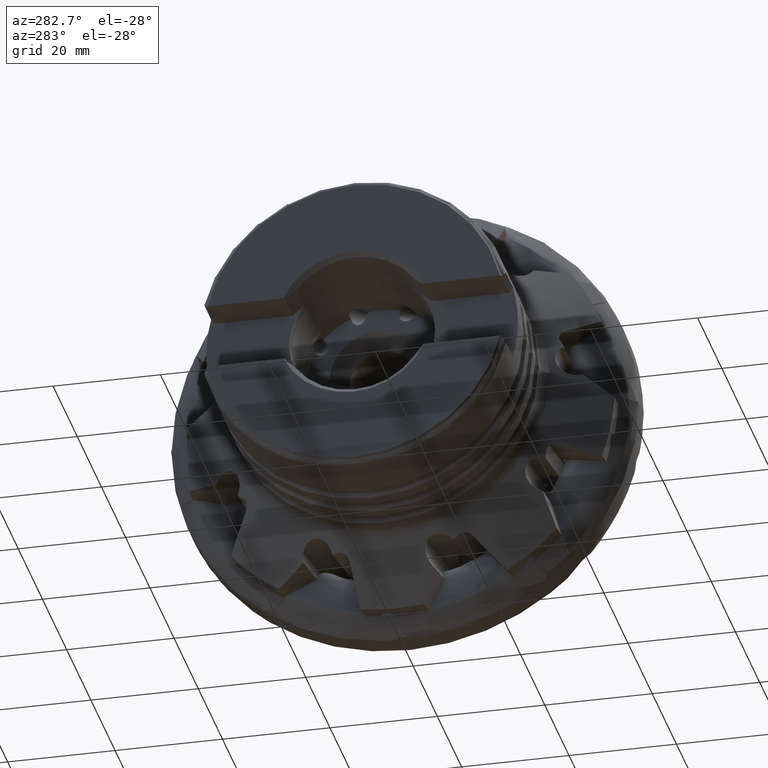
[diagram: clean part render]
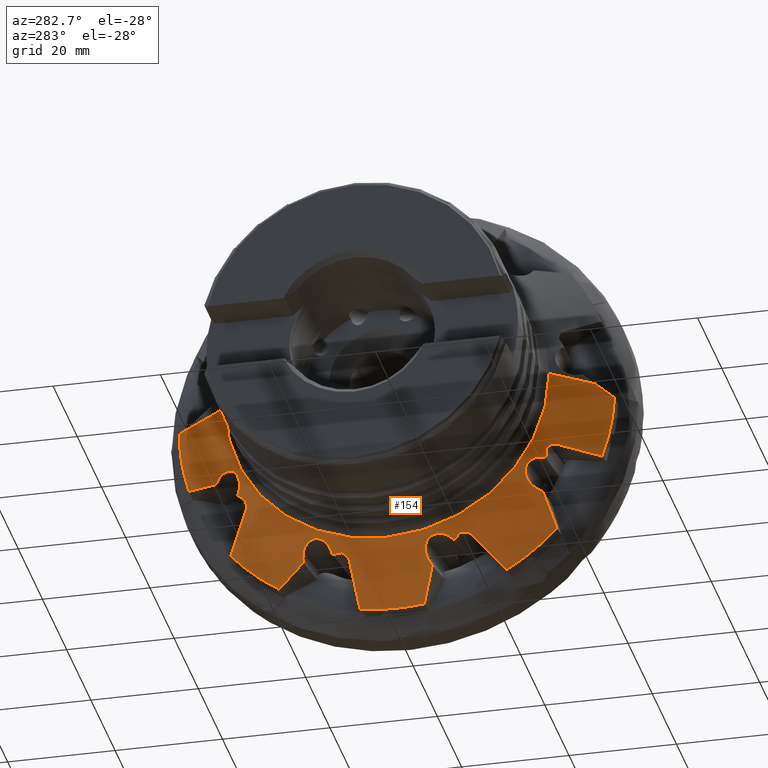
[diagram: same view with one face highlighted and labeled with its STEP entity id]
A machine part, auxiliary view. The second image highlights one B-rep face of the part: STEP entity #154.
In plain terms, the highlighted conical surface has half-angle 51.956 deg.
Its self-contained STEP definition (entity closure, byte-faithful):
#8 = DIRECTION ( 'NONE',  ( 1.000000000000000000, 1.224646799147353700E-016, -0.0000000000000000000 ) ) ;
#31 = ORIENTED_EDGE ( 'NONE', *, *, #8888, .F. ) ;
#79 = CARTESIAN_POINT ( 'NONE',  ( -18.69021929738616100, -31.02789995755659900, -13.21715150206612900 ) ) ;
#154 = ADVANCED_FACE ( 'NONE', ( #5780 ), #1470, .T. ) ;
#164 = CARTESIAN_POINT ( 'NONE',  ( -18.69021929738618200, 7.628414987509808400, -32.85165071017050300 ) ) ;
#197 = CARTESIAN_POINT ( 'NONE',  ( -13.35000000000000000, -29.75684249906444400, -27.54692041745994400 ) ) ;
#256 = CARTESIAN_POINT ( 'NONE',  ( -17.48333123287310500, -7.343886018885501500, -34.49504754871970400 ) ) ;
#305 = B_SPLINE_CURVE_WITH_KNOTS ( 'NONE', 3,
 ( #2437, #12588, #3895, #14036 ),
 .UNSPECIFIED., .F., .F.,
 ( 4, 4 ),
 ( 0.0001314531480404987700, 0.007431885192477834100 ),
 .UNSPECIFIED. ) ;
#369 = EDGE_CURVE ( 'NONE', #5730, #1523, #11348, .T. ) ;
#410 = CARTESIAN_POINT ( 'NONE',  ( -19.66920217236100000, 10.85832108273683300, -30.60678451065379200 ) ) ;
#461 = CARTESIAN_POINT ( 'NONE',  ( -20.05628040764100800, -10.71916145709184300, -30.13114893054616800 ) ) ;
#527 = CARTESIAN_POINT ( 'NONE',  ( -20.17603357581927500, -7.171777549566678900, -31.00868679443856700 ) ) ;
#530 = CARTESIAN_POINT ( 'NONE',  ( -20.52399002435707600, 12.02998316859838300, -28.98578551683642600 ) ) ;
#586 = CARTESIAN_POINT ( 'NONE',  ( -19.60636128569370100, 15.33537032473015100, -28.71694734350034000 ) ) ;
#646 = CARTESIAN_POINT ( 'NONE',  ( -18.69021929738616100, -31.02789995755659900, -13.21715150206612900 ) ) ;
#688 = EDGE_CURVE ( 'NONE', #6395, #10643, #15365, .T. ) ;
#702 = CARTESIAN_POINT ( 'NONE',  ( -19.52697270070735800, -29.53517726739957500, -13.93357428617625400 ) ) ;
#739 = EDGE_CURVE ( 'NONE', #7302, #5730, #3713, .T. ) ;
#759 = CARTESIAN_POINT ( 'NONE',  ( -20.56951584025491200, 28.37741607824020200, -13.26531334090468700 ) ) ;
#813 = CARTESIAN_POINT ( 'NONE',  ( -17.36833271861303300, 32.79565304663298500, -13.36653592623916100 ) ) ;
#832 = AXIS2_PLACEMENT_3D ( 'NONE', #5865, #16025, #7342 ) ;
#871 = CARTESIAN_POINT ( 'NONE',  ( -19.52697270070734300, -13.66892951242429400, -29.65858315209082700 ) ) ;
#877 = CARTESIAN_POINT ( 'NONE',  ( -18.81502452121225500, 16.08866946287674800, -29.45923926435359500 ) ) ;
#924 = ORIENTED_EDGE ( 'NONE', *, *, #13828, .F. ) ;
#946 = CARTESIAN_POINT ( 'NONE',  ( -19.11123593451899400, 7.833602415292612700, -32.25009117772649600 ) ) ;
#966 = VERTEX_POINT ( 'NONE', #8762 ) ;
#972 = VERTEX_POINT ( 'NONE', #2862 ) ;
#1039 = CIRCLE ( 'NONE', #7793, 40.54999999999999700 ) ;
#1141 = DIRECTION ( 'NONE',  ( -1.283395913176429500E-016, 1.000000000000000000, 0.0000000000000000000 ) ) ;
#1179 = ORIENTED_EDGE ( 'NONE', *, *, #18270, .F. ) ;
#1208 = CARTESIAN_POINT ( 'NONE',  ( -19.30207685235750500, -28.80394249904111000, -15.98854269067364900 ) ) ;
#1242 = CARTESIAN_POINT ( 'NONE',  ( -19.46830311970100200, -29.19004041238537500, -14.81974602739063100 ) ) ;
#1259 = CARTESIAN_POINT ( 'NONE',  ( -18.69021929738617500, 26.96033894523504400, -20.26237383829329600 ) ) ;
#1268 = CARTESIAN_POINT ( 'NONE',  ( -20.59025953215084900, -26.15113400049477100, -17.19611646626937300 ) ) ;
#1277 = CARTESIAN_POINT ( 'NONE',  ( -14.97286565305243600, -38.47613345799581500, -0.6621226943618682100 ) ) ;
#1312 = DIRECTION ( 'NONE',  ( -1.283395913176429500E-016, 1.000000000000000000, 0.0000000000000000000 ) ) ;
#1317 = CARTESIAN_POINT ( 'NONE',  ( -19.11123593451899800, 26.73084662014210600, -19.66966056501708900 ) ) ;
#1326 = CARTESIAN_POINT ( 'NONE',  ( -19.47803254729735300, -25.69478138477562400, -20.25617812329671400 ) ) ;
#1470 = CONICAL_SURFACE ( 'NONE', #4968, 40.54999999999999700, 0.9067981123664179400 ) ;
#1523 = VERTEX_POINT ( 'NONE', #9070 ) ;
#1548 = CARTESIAN_POINT ( 'NONE',  ( -19.17535351589828000, 28.34876105255968800, -17.09792135835128200 ) ) ;
#1627 = ORIENTED_EDGE ( 'NONE', *, *, #7557, .F. ) ;
#1867 = VERTEX_POINT ( 'NONE', #8499 ) ;
#1920 = CARTESIAN_POINT ( 'NONE',  ( -20.31673876396597900, -10.12070874881616300, -29.98559661540161200 ) ) ;
#1969 = CARTESIAN_POINT ( 'NONE',  ( -19.85532128889016700, -6.840698967890754800, -31.50336496422517700 ) ) ;
#1970 = CARTESIAN_POINT ( 'NONE',  ( -20.60510810308362700, 12.58802825201619800, -28.63467356797339700 ) ) ;
#2026 = CARTESIAN_POINT ( 'NONE',  ( -19.21807215297796400, 15.75613539305480900, -29.05387900384099400 ) ) ;
#2142 = CARTESIAN_POINT ( 'NONE',  ( -19.17535351589828000, 28.34876105255968800, -17.09792135835128200 ) ) ;
#2164 = CARTESIAN_POINT ( 'NONE',  ( -19.59808051752240800, -29.29517450843486500, -14.22350093984326400 ) ) ;
#2198 = CARTESIAN_POINT ( 'NONE',  ( -20.41661134708939000, 28.81049808836913000, -12.78552126644300000 ) ) ;
#2211 = CARTESIAN_POINT ( 'NONE',  ( -19.32712676111311000, -12.37402938476044100, -30.50231280895750500 ) ) ;
#2232 = ORIENTED_EDGE ( 'NONE', *, *, #9650, .F. ) ;
#2335 = CARTESIAN_POINT ( 'NONE',  ( -19.59808051752240500, -13.29871547189112300, -29.72640905429140500 ) ) ;
#2341 = CARTESIAN_POINT ( 'NONE',  ( -18.40711158138275000, 16.33308596537981900, -29.91968913791260200 ) ) ;
#2401 = CARTESIAN_POINT ( 'NONE',  ( -19.35499015185929400, 8.163198879024882600, -31.84693859409965100 ) ) ;
#2437 = CARTESIAN_POINT ( 'NONE',  ( -17.36833271861302900, 16.53108409701460600, -31.31999999999999300 ) ) ;
#2465 = EDGE_CURVE ( 'NONE', #18517, #8930, #4009, .T. ) ;
#2508 = DIRECTION ( 'NONE',  ( 0.6162705013462863600, -0.7875345510962658000, 9.644516672179897400E-017 ) ) ;
#2625 = EDGE_CURVE ( 'NONE', #17328, #10535, #13104, .T. ) ;
#2710 = CARTESIAN_POINT ( 'NONE',  ( -20.59783053431433000, -25.83761940121321400, -17.64558070560842800 ) ) ;
#2719 = CARTESIAN_POINT ( 'NONE',  ( -13.34999999999999300, -40.50188297053937700, -1.974835649043407800 ) ) ;
#2723 = ORIENTED_EDGE ( 'NONE', *, *, #5164, .F. ) ;
#2773 = CARTESIAN_POINT ( 'NONE',  ( -19.35499015185929400, 26.72419067408742100, -19.14896724551707400 ) ) ;
#2785 = CARTESIAN_POINT ( 'NONE',  ( -19.08318460382904300, -25.98327862998711200, -20.70443377778829900 ) ) ;
#2862 = CARTESIAN_POINT ( 'NONE',  ( -13.35000000000000700, 38.73475412708065600, -11.99672133187260500 ) ) ;
#2866 = EDGE_CURVE ( 'NONE', #9783, #17328, #7429, .T. ) ;
#2962 = ORIENTED_EDGE ( 'NONE', *, *, #15771, .F. ) ;
#2979 = VERTEX_POINT ( 'NONE', #18418 ) ;
#3144 = ORIENTED_EDGE ( 'NONE', *, *, #9438, .F. ) ;
#3150 = DIRECTION ( 'NONE',  ( 1.000000000000000000, 1.224646799147353700E-016, -0.0000000000000000000 ) ) ;
#3362 = CARTESIAN_POINT ( 'NONE',  ( -20.46938650801272500, -9.639691402361320300, -29.93887152391284800 ) ) ;
#3423 = CARTESIAN_POINT ( 'NONE',  ( -19.28072456588562400, -6.605561313303501200, -32.30284645957756600 ) ) ;
#3424 = CARTESIAN_POINT ( 'NONE',  ( -20.59046142462018700, 12.99456439438414400, -28.47243203382426200 ) ) ;
#3480 = B_SPLINE_CURVE_WITH_KNOTS ( 'NONE', 3,
 ( #15704, #7009, #12856, #4160 ),
 .UNSPECIFIED., .F., .F.,
 ( 4, 4 ),
 ( 0.002523415085199293600, 0.009823748894369249000 ),
 .UNSPECIFIED. ) ;
#3662 = CARTESIAN_POINT ( 'NONE',  ( -20.16526306676830400, 29.31360085586136300, -12.43246755634560200 ) ) ;
#3713 = B_SPLINE_CURVE_WITH_KNOTS ( 'NONE', 3,
 ( #5864, #14564, #17469, #8800 ),
 .UNSPECIFIED., .F., .F.,
 ( 4, 4 ),
 ( 0.01610332926583343100, 0.01794551413778120900 ),
 .UNSPECIFIED. ) ;
#3788 = CARTESIAN_POINT ( 'NONE',  ( -18.00502161635284200, 16.48709061923346700, -30.42087164980084100 ) ) ;
#3833 = VERTEX_POINT ( 'NONE', #6373 ) ;
#3844 = CARTESIAN_POINT ( 'NONE',  ( -19.52697270070734700, 8.593162274643914200, -31.50601134270641200 ) ) ;
#3895 = CARTESIAN_POINT ( 'NONE',  ( -14.71399454524613200, 20.16651581961092900, -33.17099166041313700 ) ) ;
#3914 = CARTESIAN_POINT ( 'NONE',  ( -13.35000000000000500, 40.54966021884087700, -0.1660004113019694100 ) ) ;
#4009 = B_SPLINE_CURVE_WITH_KNOTS ( 'NONE', 3,
 ( #16182, #6025, #14715, #7483, #17631, #8963, #256, #10428 ),
 .UNSPECIFIED., .F., .F.,
 ( 4, 2, 2, 4 ),
 ( 0.01274623700687061700, 0.01399861403436286600, 0.01462480254810899100, 0.01525099106185511500 ),
 .UNSPECIFIED. ) ;
#4061 = CARTESIAN_POINT ( 'NONE',  ( -13.80120445866984000, 39.97340400841039100, 4.309282533594475900E-017 ) ) ;
#4105 = B_SPLINE_CURVE_WITH_KNOTS ( 'NONE', 3,
 ( #6710, #15410, #9639, #946, #11122, #2401, #12551, #3844, #13999, #5327 ),
 .UNSPECIFIED., .F., .F.,
 ( 4, 2, 2, 2, 4 ),
 ( 0.0000000000000000000, 0.0005765854406293929000, 0.001153170881258786900, 0.001729756321888180700, 0.002306341762517574600 ),
 .UNSPECIFIED. ) ;
#4110 = CARTESIAN_POINT ( 'NONE',  ( -19.42511457449093400, -28.62315943246166600, -15.99018985809106600 ) ) ;
#4154 = CARTESIAN_POINT ( 'NONE',  ( -19.59808051752240800, -29.29517450843486500, -14.22350093984326400 ) ) ;
#4160 = CARTESIAN_POINT ( 'NONE',  ( -13.35000000000000700, 38.73475412708065600, -11.99672133187260500 ) ) ;
#4181 = CARTESIAN_POINT ( 'NONE',  ( -20.56545044273781300, -25.68476923661929200, -17.93968782906801700 ) ) ;
#4210 = AXIS2_PLACEMENT_3D ( 'NONE', #11858, #3150, #13302 ) ;
#4231 = DIRECTION ( 'NONE',  ( 1.000000000000000000, 1.224646799147353700E-016, -0.0000000000000000000 ) ) ;
#4235 = CARTESIAN_POINT ( 'NONE',  ( -19.52697270070735800, 26.83441793104588800, -18.61142667575679600 ) ) ;
#4245 = CARTESIAN_POINT ( 'NONE',  ( -18.67772688941574800, -26.34925614920003800, -21.07646757195263400 ) ) ;
#4318 = ORIENTED_EDGE ( 'NONE', *, *, #2866, .T. ) ;
#4323 = CIRCLE ( 'NONE', #9902, 40.54999999999999700 ) ;
#4519 = EDGE_CURVE ( 'NONE', #12507, #966, #1039, .T. ) ;
#4536 = ORIENTED_EDGE ( 'NONE', *, *, #12036, .F. ) ;
#4590 = ORIENTED_EDGE ( 'NONE', *, *, #4519, .F. ) ;
#4842 = CARTESIAN_POINT ( 'NONE',  ( -20.61146406832663700, -8.810071223230908200, -30.00567730260492300 ) ) ;
#4851 = VERTEX_POINT ( 'NONE', #8637 ) ;
#4903 = CARTESIAN_POINT ( 'NONE',  ( -18.87101848106226500, -6.610165193569684100, -32.83593336366537600 ) ) ;
#4904 = CARTESIAN_POINT ( 'NONE',  ( -20.54819685374381100, 13.31265473325284900, -28.38475169003977100 ) ) ;
#4932 = CARTESIAN_POINT ( 'NONE',  ( -15.77078461295792300, -37.45646961147452500, -7.646761571315301100E-015 ) ) ;
#4954 = CARTESIAN_POINT ( 'NONE',  ( -16.92110533411156200, 28.29883732707539700, -22.24433799164101400 ) ) ;
#4968 = AXIS2_PLACEMENT_3D ( 'NONE', #11485, #4231, #1312 ) ;
#5071 = CARTESIAN_POINT ( 'NONE',  ( -20.09789094719464900, 27.79246859362961400, -15.71547464604848600 ) ) ;
#5074 = DIRECTION ( 'NONE',  ( 1.000000000000000000, 1.224646799147353700E-016, -0.0000000000000000000 ) ) ;
#5130 = CARTESIAN_POINT ( 'NONE',  ( -19.84295746342290900, 29.85056991374254700, -12.21415843153062600 ) ) ;
#5132 = DIRECTION ( 'NONE',  ( 0.6162705013462861400, 0.7875345510962660200, 0.0000000000000000000 ) ) ;
#5134 = CARTESIAN_POINT ( 'NONE',  ( -18.91432152501802800, -15.02666056268246400, -29.87304892986185900 ) ) ;
#5152 = CARTESIAN_POINT ( 'NONE',  ( -16.05766705511904700, -6.665553321168782300, -36.50516807260426300 ) ) ;
#5161 = B_SPLINE_CURVE_WITH_KNOTS ( 'NONE', 3,
 ( #646, #18029, #6478, #16625, #7935, #18089, #9409, #702, #10884, #2164 ),
 .UNSPECIFIED., .F., .F.,
 ( 4, 2, 2, 2, 4 ),
 ( 0.0000000000000000000, 0.0005765854406293930100, 0.001153170881258786000, 0.001729756321888179100, 0.002306341762517572000 ),
 .UNSPECIFIED. ) ;
#5164 = EDGE_CURVE ( 'NONE', #11406, #13230, #12243, .T. ) ;
#5186 = CARTESIAN_POINT ( 'NONE',  ( -18.80494901433295500, -15.16142175500815600, -29.96147062058960100 ) ) ;
#5259 = CARTESIAN_POINT ( 'NONE',  ( -17.61521069886584800, 16.54865683373888200, -30.95351027231384200 ) ) ;
#5279 = CARTESIAN_POINT ( 'NONE',  ( -17.36833271861302200, -27.97358619603677000, -21.71860070896534700 ) ) ;
#5327 = CARTESIAN_POINT ( 'NONE',  ( -19.59808051752241200, 8.920360332709325500, -31.32000000000000000 ) ) ;
#5538 = B_SPLINE_CURVE_WITH_KNOTS ( 'NONE', 3,
 ( #13531, #12087, #7767, #17906 ),
 .UNSPECIFIED., .F., .F.,
 ( 4, 4 ),
 ( 3.325307219297822400E-007, 0.008924713310425049300 ),
 .UNSPECIFIED. ) ;
#5550 = CARTESIAN_POINT ( 'NONE',  ( -19.32708631007575300, -29.08553748440708000, -15.41241158293072500 ) ) ;
#5580 = CARTESIAN_POINT ( 'NONE',  ( -19.77787633077158700, -28.06647047500146600, -16.05911499998276400 ) ) ;
#5620 = CARTESIAN_POINT ( 'NONE',  ( -18.80494901433295900, 26.87353530020697400, -20.13384046450692100 ) ) ;
#5628 = CARTESIAN_POINT ( 'NONE',  ( -20.48229278325142000, -25.53031750344468500, -18.34240806530473500 ) ) ;
#5678 = CARTESIAN_POINT ( 'NONE',  ( -19.59808051752241600, 26.96550039887337700, -18.25861486268150500 ) ) ;
#5683 = EDGE_CURVE ( 'NONE', #8930, #12005, #15994, .T. ) ;
#5685 = CARTESIAN_POINT ( 'NONE',  ( -18.26957201729636200, -26.78172320033614200, -21.37081763888113900 ) ) ;
#5730 = VERTEX_POINT ( 'NONE', #15363 ) ;
#5780 = FACE_OUTER_BOUND ( 'NONE', #6409, .T. ) ;
#5830 = CARTESIAN_POINT ( 'NONE',  ( -13.34999999999999800, -38.16099196748619700, -13.71281123830751800 ) ) ;
#5864 = CARTESIAN_POINT ( 'NONE',  ( -19.59808051752241200, 8.920360332709325500, -31.32000000000000000 ) ) ;
#5865 = CARTESIAN_POINT ( 'NONE',  ( -21.48739634671120100, -2.631447115801041200E-015, 0.0000000000000000000 ) ) ;
#5872 = ORIENTED_EDGE ( 'NONE', *, *, #16030, .F. ) ;
#5909 = ORIENTED_EDGE ( 'NONE', *, *, #8493, .F. ) ;
#5926 = ORIENTED_EDGE ( 'NONE', *, *, #18646, .F. ) ;
#6025 = CARTESIAN_POINT ( 'NONE',  ( -18.61135215646844900, -6.638121006518440800, -33.16879119855007500 ) ) ;
#6049 = CARTESIAN_POINT ( 'NONE',  ( -19.59808051752240500, -13.29871547189112300, -29.72640905429140500 ) ) ;
#6115 = ORIENTED_EDGE ( 'NONE', *, *, #739, .F. ) ;
#6160 = B_SPLINE_CURVE_WITH_KNOTS ( 'NONE', 3,
 ( #5279, #14598, #8895, #197 ),
 .UNSPECIFIED., .F., .F.,
 ( 4, 4 ),
 ( 0.0008365665560623751400, 0.008136988856721517900 ),
 .UNSPECIFIED. ) ;
#6167 = VERTEX_POINT ( 'NONE', #13626 ) ;
#6199 = CARTESIAN_POINT ( 'NONE',  ( -18.69021929738616800, -15.27292912325981600, -30.06927510933033400 ) ) ;
#6287 = CARTESIAN_POINT ( 'NONE',  ( -20.57338749287732700, -8.180691753987815700, -30.23235112997355900 ) ) ;
#6288 = CARTESIAN_POINT ( 'NONE',  ( -19.98843259232810600, 11.10327322405246700, -30.08339223239903100 ) ) ;
#6294 = B_SPLINE_CURVE_WITH_KNOTS ( 'NONE', 3,
 ( #1259, #5620, #10004, #1317, #11490, #2773, #12927, #4235, #14386, #5678 ),
 .UNSPECIFIED., .F., .F.,
 ( 4, 2, 2, 2, 4 ),
 ( 0.0000000000000000000, 0.0005765854406293934400, 0.001153170881258786900, 0.001729756321888180400, 0.002306341762517573800 ),
 .UNSPECIFIED. ) ;
#6340 = CARTESIAN_POINT ( 'NONE',  ( -20.41947687822156300, 13.84327409911604300, -28.31339012423498900 ) ) ;
#6350 = VERTEX_POINT ( 'NONE', #15667 ) ;
#6373 = CARTESIAN_POINT ( 'NONE',  ( -19.59808051752241600, 26.96550039887337700, -18.25861486268150500 ) ) ;
#6395 = VERTEX_POINT ( 'NONE', #12879 ) ;
#6409 = EDGE_LOOP ( 'NONE', ( #15193, #4318, #17088, #18379, #8681, #11035, #8377, #17510, #4536, #924, #13411, #31, #11277, #6115, #10702, #2232, #5909, #18403, #18719, #3144, #1179, #2723, #2962, #14998, #5926, #15535, #14392, #8871, #5872, #4590, #1627 ) ) ;
#6478 = CARTESIAN_POINT ( 'NONE',  ( -18.91432152501802800, -30.71311553835294500, -13.22513190708430000 ) ) ;
#6512 = CARTESIAN_POINT ( 'NONE',  ( -20.47484950830076000, 27.80968171333486100, -14.67838454918914000 ) ) ;
#6567 = CARTESIAN_POINT ( 'NONE',  ( -19.21514317121420800, 30.75580210698031200, -12.11241105457489600 ) ) ;
#6641 = CARTESIAN_POINT ( 'NONE',  ( -18.69021929738616800, -15.27292912325981600, -30.06927510933033400 ) ) ;
#6710 = CARTESIAN_POINT ( 'NONE',  ( -18.69021929738618200, 7.628414987509808400, -32.85165071017050300 ) ) ;
#6712 = CARTESIAN_POINT ( 'NONE',  ( -17.36833271861302900, 16.53108409701460600, -31.31999999999999300 ) ) ;
#7009 = CARTESIAN_POINT ( 'NONE',  ( -16.05767834868982300, 34.79309414411662300, -12.90334849120309700 ) ) ;
#7034 = CARTESIAN_POINT ( 'NONE',  ( -20.08814383542936700, -27.51118935119459900, -16.22594090681867500 ) ) ;
#7100 = CARTESIAN_POINT ( 'NONE',  ( -20.26199632140013700, -25.42600726899887700, -18.96120022904091600 ) ) ;
#7131 = DIRECTION ( 'NONE',  ( 1.000000000000000000, 1.224646799147353700E-016, -0.0000000000000000000 ) ) ;
#7160 = CARTESIAN_POINT ( 'NONE',  ( -17.87207887459663500, -27.26398491589881300, -21.58049306714566400 ) ) ;
#7261 = EDGE_CURVE ( 'NONE', #3833, #1867, #13377, .T. ) ;
#7302 = VERTEX_POINT ( 'NONE', #13290 ) ;
#7342 = DIRECTION ( 'NONE',  ( -1.150683314662162400E-016, 1.000000000000000000, 0.0000000000000000000 ) ) ;
#7429 = CIRCLE ( 'NONE', #832, 30.15118849596106500 ) ;
#7483 = CARTESIAN_POINT ( 'NONE',  ( -17.97041138229650400, -6.946979330588339600, -33.94194846091820500 ) ) ;
#7557 = EDGE_CURVE ( 'NONE', #7823, #12507, #13071, .T. ) ;
#7753 = CARTESIAN_POINT ( 'NONE',  ( -20.47355502893053700, -7.750476911730799200, -30.47706792660849100 ) ) ;
#7754 = CARTESIAN_POINT ( 'NONE',  ( -20.26538754270743000, 11.43257310472949200, -29.58082865252619000 ) ) ;
#7767 = CARTESIAN_POINT ( 'NONE',  ( -16.92110476939743800, -16.99235553170551000, -31.73160368721830700 ) ) ;
#7793 = AXIS2_PLACEMENT_3D ( 'NONE', #13750, #5074, #15209 ) ;
#7819 = CARTESIAN_POINT ( 'NONE',  ( -20.16905733136539400, 14.45654924510323400, -28.36464725981621300 ) ) ;
#7823 = VERTEX_POINT ( 'NONE', #4932 ) ;
#7935 = CARTESIAN_POINT ( 'NONE',  ( -19.20079853125653800, -30.24347560846726800, -13.38627328584690600 ) ) ;
#7987 = CARTESIAN_POINT ( 'NONE',  ( -20.59066561762854500, 27.96942411388006300, -14.04517277594724900 ) ) ;
#8004 = CARTESIAN_POINT ( 'NONE',  ( -19.46833868223303600, -12.83504622001430200, -30.11547375252948200 ) ) ;
#8050 = CARTESIAN_POINT ( 'NONE',  ( -18.40112658807644800, 31.75665740814226400, -12.40967591456060000 ) ) ;
#8076 = CARTESIAN_POINT ( 'NONE',  ( -13.35000000000000000, -5.088244711810485700, -40.22949497262838700 ) ) ;
#8112 = CARTESIAN_POINT ( 'NONE',  ( -19.20079853125655200, -14.56331582245034200, -29.69461165967491200 ) ) ;
#8254 = CARTESIAN_POINT ( 'NONE',  ( -18.69021929738618200, 7.628414987509808400, -32.85165071017050300 ) ) ;
#8260 = CARTESIAN_POINT ( 'NONE',  ( -18.69021929738617500, 26.96033894523504400, -20.26237383829329600 ) ) ;
#8377 = ORIENTED_EDGE ( 'NONE', *, *, #14259, .F. ) ;
#8437 = EDGE_CURVE ( 'NONE', #2979, #4851, #4323, .T. ) ;
#8493 = EDGE_CURVE ( 'NONE', #12005, #18605, #15903, .T. ) ;
#8499 = CARTESIAN_POINT ( 'NONE',  ( -19.17535351589828000, 28.34876105255968800, -17.09792135835128200 ) ) ;
#8507 = CARTESIAN_POINT ( 'NONE',  ( -20.34500655785980100, -26.96379051265823900, -16.49999965419277400 ) ) ;
#8547 = CARTESIAN_POINT ( 'NONE',  ( -13.65085805554646800, 40.16553228135878600, -0.05533316862967991400 ) ) ;
#8561 = CARTESIAN_POINT ( 'NONE',  ( -19.96025607214955500, -25.46142906621735200, -19.55303636415930800 ) ) ;
#8618 = CARTESIAN_POINT ( 'NONE',  ( -17.48922020773350600, -27.78977811482582200, -21.70344210600860200 ) ) ;
#8637 = CARTESIAN_POINT ( 'NONE',  ( -13.35000000000000100, -20.41859068264629300, -35.03403565869267300 ) ) ;
#8681 = ORIENTED_EDGE ( 'NONE', *, *, #11325, .F. ) ;
#8718 = CARTESIAN_POINT ( 'NONE',  ( -13.35000000000000000, -1.634903476861717000E-015, 0.0000000000000000000 ) ) ;
#8762 = CARTESIAN_POINT ( 'NONE',  ( -13.34999999999999800, -38.16099196748619700, -13.71281123830751800 ) ) ;
#8769 = CARTESIAN_POINT ( 'NONE',  ( -16.92110651595500000, -33.41357886092988800, -13.38534291463130500 ) ) ;
#8792 = CARTESIAN_POINT ( 'NONE',  ( -19.59808051752241600, 26.96550039887337700, -18.25861486268150500 ) ) ;
#8800 = CARTESIAN_POINT ( 'NONE',  ( -19.17535351589828000, 10.72607887307796800, -31.32000000000000700 ) ) ;
#8871 = ORIENTED_EDGE ( 'NONE', *, *, #10340, .F. ) ;
#8888 = EDGE_CURVE ( 'NONE', #1523, #15206, #305, .T. ) ;
#8895 = CARTESIAN_POINT ( 'NONE',  ( -14.71401764959645000, -29.16516101814153900, -25.62019074781014500 ) ) ;
#8899 = CARTESIAN_POINT ( 'NONE',  ( -19.17535351589827300, -28.98161477452044500, -16.00178655815618700 ) ) ;
#8930 = VERTEX_POINT ( 'NONE', #14183 ) ;
#8963 = CARTESIAN_POINT ( 'NONE',  ( -17.60163865321299800, -7.232252896254845400, -34.36407831964510300 ) ) ;
#9070 = CARTESIAN_POINT ( 'NONE',  ( -17.36833271861302900, 16.53108409701460600, -31.31999999999999300 ) ) ;
#9097 = B_SPLINE_CURVE_WITH_KNOTS ( 'NONE', 3,
 ( #15784, #14457, #8547, #18675 ),
 .UNSPECIFIED., .F., .F.,
 ( 4, 4 ),
 ( 3.325315643623303400E-007, 0.0007508021223311701100 ),
 .UNSPECIFIED. ) ;
#9121 = B_SPLINE_CURVE_WITH_KNOTS ( 'NONE', 3,
 ( #15475, #12557, #16922, #8254 ),
 .UNSPECIFIED., .F., .F.,
 ( 4, 4 ),
 ( 3.325303177175800700E-007, 0.008924711231717379800 ),
 .UNSPECIFIED. ) ;
#9154 = CARTESIAN_POINT ( 'NONE',  ( -19.89670195071779400, -10.99895775117985300, -30.24670513572653600 ) ) ;
#9185 = CARTESIAN_POINT ( 'NONE',  ( -21.48739634671119700, -30.15118849596106500, 3.692455648206721200E-015 ) ) ;
#9217 = CARTESIAN_POINT ( 'NONE',  ( -20.31172767496919500, -7.379223554574643600, -30.78168812227886500 ) ) ;
#9218 = CARTESIAN_POINT ( 'NONE',  ( -20.47394039971310800, 11.86522724588421200, -29.12256324947167800 ) ) ;
#9254 = VECTOR ( 'NONE', #5132, 1000.000000000000000 ) ;
#9273 = CARTESIAN_POINT ( 'NONE',  ( -19.84665735975294600, 15.01026636026388200, -28.54170966682470500 ) ) ;
#9409 = CARTESIAN_POINT ( 'NONE',  ( -19.42014473882443300, -29.80340575857857000, -13.68075549135789600 ) ) ;
#9438 = EDGE_CURVE ( 'NONE', #15241, #18517, #13424, .T. ) ;
#9446 = CARTESIAN_POINT ( 'NONE',  ( -20.59458579807857200, 28.25661227762875800, -13.44652996716202000 ) ) ;
#9500 = CARTESIAN_POINT ( 'NONE',  ( -17.60800713242576900, 32.58741454741224400, -13.06596387968122400 ) ) ;
#9562 = CARTESIAN_POINT ( 'NONE',  ( -19.42014473882441900, -14.03691324638327100, -29.63732666989894300 ) ) ;
#9593 = AXIS2_PLACEMENT_3D ( 'NONE', #18501, #9845, #1141 ) ;
#9639 = CARTESIAN_POINT ( 'NONE',  ( -18.91432152501803500, 7.690935892996538600, -32.54303435639974400 ) ) ;
#9650 = EDGE_CURVE ( 'NONE', #18605, #18526, #9121, .T. ) ;
#9740 = CARTESIAN_POINT ( 'NONE',  ( -13.34999999999999400, -40.54999999999999700, 4.965942770542516900E-015 ) ) ;
#9783 = VERTEX_POINT ( 'NONE', #9185 ) ;
#9845 = DIRECTION ( 'NONE',  ( 1.000000000000000000, 1.224646799147353700E-016, -0.0000000000000000000 ) ) ;
#9902 = AXIS2_PLACEMENT_3D ( 'NONE', #15822, #7131, #17257 ) ;
#9958 = CARTESIAN_POINT ( 'NONE',  ( -20.52464255592401800, -26.45411915078774400, -16.88264181095820100 ) ) ;
#9965 = CARTESIAN_POINT ( 'NONE',  ( -15.77078461295792300, -37.45646961147452500, -7.646761571315301100E-015 ) ) ;
#9983 = CARTESIAN_POINT ( 'NONE',  ( -18.69021929738616100, -31.02789995755659900, -13.21715150206612900 ) ) ;
#10004 = CARTESIAN_POINT ( 'NONE',  ( -18.91432152501803900, 26.80985796911145200, -19.98577233203831900 ) ) ;
#10014 = CARTESIAN_POINT ( 'NONE',  ( -19.60475338083863400, -25.61854134103099100, -20.09131485105986300 ) ) ;
#10179 = CARTESIAN_POINT ( 'NONE',  ( -15.13918540121706300, -35.78993042819758600, -13.55006180297960400 ) ) ;
#10185 = DIRECTION ( 'NONE',  ( -1.283395913176429500E-016, 1.000000000000000000, 0.0000000000000000000 ) ) ;
#10262 = CARTESIAN_POINT ( 'NONE',  ( -19.32712676111311700, 27.89018648600405100, -17.48271110801539800 ) ) ;
#10340 = EDGE_CURVE ( 'NONE', #13604, #6395, #5161, .T. ) ;
#10428 = CARTESIAN_POINT ( 'NONE',  ( -17.36833271861302900, -7.468562824131440800, -34.61848799073366900 ) ) ;
#10535 = VERTEX_POINT ( 'NONE', #4061 ) ;
#10607 = CARTESIAN_POINT ( 'NONE',  ( -13.34999999999996200, 21.96119932564009100, -34.08824172906993500 ) ) ;
#10631 = CARTESIAN_POINT ( 'NONE',  ( -20.25617866556880000, -10.27400470932548900, -30.01514969035430300 ) ) ;
#10642 = B_SPLINE_CURVE_WITH_KNOTS ( 'NONE', 3,
 ( #5830, #10179, #8769, #79 ),
 .UNSPECIFIED., .F., .F.,
 ( 4, 4 ),
 ( 3.325303857775711600E-007, 0.008924711613609906000 ),
 .UNSPECIFIED. ) ;
#10643 = VERTEX_POINT ( 'NONE', #8899 ) ;
#10674 = CIRCLE ( 'NONE', #4210, 40.54999999999999700 ) ;
#10684 = CARTESIAN_POINT ( 'NONE',  ( -20.10084860685785900, -7.080404299778742900, -31.12813748615484500 ) ) ;
#10685 = CARTESIAN_POINT ( 'NONE',  ( -20.58991674088393600, 12.39077199694945400, -28.74168272986888800 ) ) ;
#10702 = ORIENTED_EDGE ( 'NONE', *, *, #16916, .F. ) ;
#10752 = CARTESIAN_POINT ( 'NONE',  ( -19.47849832380977700, 15.48608299331109500, -28.82146497250099100 ) ) ;
#10865 = CARTESIAN_POINT ( 'NONE',  ( -19.43217956343040200, 28.14547484023252700, -16.79950113755263200 ) ) ;
#10884 = CARTESIAN_POINT ( 'NONE',  ( -19.56800462234349100, -29.41098429883426100, -14.07297259407112300 ) ) ;
#10923 = CARTESIAN_POINT ( 'NONE',  ( -20.48017446691561700, 28.65588540610255900, -12.93259779135952800 ) ) ;
#11035 = ORIENTED_EDGE ( 'NONE', *, *, #15537, .F. ) ;
#11056 = CARTESIAN_POINT ( 'NONE',  ( -19.56800462234349400, -13.48418867385430000, -29.68553874982989900 ) ) ;
#11067 = CARTESIAN_POINT ( 'NONE',  ( -18.67780717443671900, 16.18069412244713900, -29.60876556542735500 ) ) ;
#11122 = CARTESIAN_POINT ( 'NONE',  ( -19.20079853125655900, 7.931181290117312900, -32.10851121909309600 ) ) ;
#11190 = VERTEX_POINT ( 'NONE', #8260 ) ;
#11277 = ORIENTED_EDGE ( 'NONE', *, *, #369, .F. ) ;
#11325 = EDGE_CURVE ( 'NONE', #972, #14300, #10674, .T. ) ;
#11348 = B_SPLINE_CURVE_WITH_KNOTS ( 'NONE', 3,
 ( #14976, #13523, #410, #6288, #16441, #7754, #17894, #9218, #530, #10685, #1970, #12139, #3424, #13574, #4904, #15043, #6340, #16494, #7819, #17951, #9273, #586, #10752, #2026, #12191, #877, #11067, #2341, #12483, #3788, #13944, #5259, #15412, #6712 ),
 .UNSPECIFIED., .F., .F.,
 ( 4, 2, 2, 2, 2, 2, 2, 2, 2, 2, 2, 2, 2, 2, 2, 2, 4 ),
 ( 2.428568389094541000E-007, 0.001309328008175457100, 0.001963870583843730700, 0.002618413159512004700, 0.003272955735180278800, 0.003927498310848552400, 0.004254769598682688800, 0.004582040886516825100, 0.005236583462185090900, 0.005891126037853357600, 0.006545668613521625100, 0.007200211189189891800, 0.007854753764858160200, 0.008509296340526429500, 0.009163838916194698800, 0.009818381491862968000, 0.01047292406753123700 ),
 .UNSPECIFIED. ) ;
#11406 = VERTEX_POINT ( 'NONE', #6199 ) ;
#11441 = CARTESIAN_POINT ( 'NONE',  ( -20.60508869786164600, -26.01539047130932400, -17.36676856502547400 ) ) ;
#11450 = CARTESIAN_POINT ( 'NONE',  ( -14.16515684683487400, -39.49087908591936000, -1.320068169869731900 ) ) ;
#11485 = CARTESIAN_POINT ( 'NONE',  ( -13.35000000000000000, -1.634903476861717000E-015, 0.0000000000000000000 ) ) ;
#11490 = CARTESIAN_POINT ( 'NONE',  ( -19.20079853125655600, 26.71459053177788000, -19.49848153274447400 ) ) ;
#11499 = CARTESIAN_POINT ( 'NONE',  ( -19.21802776415082900, -25.87650832393071500, -20.56194878344696200 ) ) ;
#11813 = B_SPLINE_CURVE_WITH_KNOTS ( 'NONE', 3,
 ( #16678, #8004, #2211, #12372 ),
 .UNSPECIFIED., .F., .F.,
 ( 4, 4 ),
 ( 0.01868771818178312600, 0.02053800862577900800 ),
 .UNSPECIFIED. ) ;
#11858 = CARTESIAN_POINT ( 'NONE',  ( -13.35000000000000000, -1.634903476861717000E-015, 0.0000000000000000000 ) ) ;
#12005 = VERTEX_POINT ( 'NONE', #18603 ) ;
#12036 = EDGE_CURVE ( 'NONE', #11190, #3833, #6294, .T. ) ;
#12073 = CARTESIAN_POINT ( 'NONE',  ( -20.42368485486396100, -9.802778123635539100, -29.94726581266790800 ) ) ;
#12075 = CARTESIAN_POINT ( 'NONE',  ( -13.35000000000000500, 30.95613887341793100, -26.19198285830347900 ) ) ;
#12087 = CARTESIAN_POINT ( 'NONE',  ( -15.13918393267324800, -18.70686689165871600, -33.38527473216600300 ) ) ;
#12138 = CARTESIAN_POINT ( 'NONE',  ( -19.67184450804775900, -6.732712624521597400, -31.76584491067644600 ) ) ;
#12139 = CARTESIAN_POINT ( 'NONE',  ( -20.59777456940134100, 12.89146701142705200, -28.50900707914192400 ) ) ;
#12191 = CARTESIAN_POINT ( 'NONE',  ( -19.08525356196601000, 15.87615715821915100, -29.18178055247806700 ) ) ;
#12193 = CARTESIAN_POINT ( 'NONE',  ( -15.13918440749666100, 29.62966369505787900, -24.21995914427735700 ) ) ;
#12243 = B_SPLINE_CURVE_WITH_KNOTS ( 'NONE', 3,
 ( #6641, #5186, #5134, #16780, #8112, #18251, #9562, #871, #11056, #2335 ),
 .UNSPECIFIED., .F., .F.,
 ( 4, 2, 2, 2, 4 ),
 ( 1.734723475976807100E-018, 0.0005765854406293922500, 0.001153170881258782800, 0.001729756321888173300, 0.002306341762517563800 ),
 .UNSPECIFIED. ) ;
#12358 = CARTESIAN_POINT ( 'NONE',  ( -20.25963941801748200, 29.13843044538227600, -12.53601991412431200 ) ) ;
#12372 = CARTESIAN_POINT ( 'NONE',  ( -19.17535351589828000, -11.91545481820479900, -30.88710255862162100 ) ) ;
#12483 = CARTESIAN_POINT ( 'NONE',  ( -18.27257725175431700, 16.39431770997881400, -30.08214966496523200 ) ) ;
#12507 = VERTEX_POINT ( 'NONE', #14920 ) ;
#12551 = CARTESIAN_POINT ( 'NONE',  ( -19.42014473882442600, 8.297606976708005200, -31.72626331739809300 ) ) ;
#12557 = CARTESIAN_POINT ( 'NONE',  ( -15.13918569090136200, 7.129349760398243400, -37.59914412217980800 ) ) ;
#12588 = CARTESIAN_POINT ( 'NONE',  ( -16.05758669995148900, 18.35907170921692700, -32.24917319657510000 ) ) ;
#12717 = B_SPLINE_CURVE_WITH_KNOTS ( 'NONE', 3,
 ( #2142, #10865, #13748, #5071, #15207, #6512, #16664, #7987, #18119, #9446, #759, #10923, #2198, #12358, #3662, #13800, #5130, #15282, #6567, #16722, #8050, #18181, #9500, #813 ),
 .UNSPECIFIED., .F., .F.,
 ( 4, 2, 2, 2, 2, 2, 2, 2, 2, 2, 2, 4 ),
 ( 0.02020899513320429200, 0.02152237973203459400, 0.02283576433086489900, 0.02349245663028005200, 0.02414914892969520800, 0.02480584122911036500, 0.02546253352852551700, 0.02611922582794067400, 0.02677591812735583000, 0.02808930272618612900, 0.02940268732501643400, 0.03071607192384673300 ),
 .UNSPECIFIED. ) ;
#12775 = EDGE_CURVE ( 'NONE', #10643, #6350, #17245, .T. ) ;
#12856 = CARTESIAN_POINT ( 'NONE',  ( -14.71407614312229000, 36.77023230498640800, -12.44769431163246900 ) ) ;
#12878 = CARTESIAN_POINT ( 'NONE',  ( -20.59030058365698000, -25.78242901433097200, -17.74309266400600300 ) ) ;
#12879 = CARTESIAN_POINT ( 'NONE',  ( -19.59808051752240800, -29.29517450843486500, -14.22350093984326400 ) ) ;
#12927 = CARTESIAN_POINT ( 'NONE',  ( -19.42014473882443300, 26.74958467776850700, -18.97012876054575500 ) ) ;
#12934 = CARTESIAN_POINT ( 'NONE',  ( -18.81310237032375500, -26.21971066478516800, -20.96148206911154700 ) ) ;
#13071 = B_SPLINE_CURVE_WITH_KNOTS ( 'NONE', 3,
 ( #9965, #1277, #11450, #2719 ),
 .UNSPECIFIED., .F., .F.,
 ( 4, 4 ),
 ( 0.004854202246429264300, 0.009216896084835725700 ),
 .UNSPECIFIED. ) ;
#13097 = CARTESIAN_POINT ( 'NONE',  ( -18.87101848106226500, -6.610165193569684100, -32.83593336366537600 ) ) ;
#13104 = LINE ( 'NONE', #13802, #9254 ) ;
#13182 = VERTEX_POINT ( 'NONE', #16128 ) ;
#13230 = VERTEX_POINT ( 'NONE', #6049 ) ;
#13290 = CARTESIAN_POINT ( 'NONE',  ( -19.59808051752241200, 8.920360332709325500, -31.32000000000000000 ) ) ;
#13302 = DIRECTION ( 'NONE',  ( -1.283395913176429500E-016, 1.000000000000000000, 0.0000000000000000000 ) ) ;
#13377 = B_SPLINE_CURVE_WITH_KNOTS ( 'NONE', 3,
 ( #8792, #17462, #10262, #1548 ),
 .UNSPECIFIED., .F., .F.,
 ( 4, 4 ),
 ( 0.01868771818178326500, 0.02053800862577914400 ),
 .UNSPECIFIED. ) ;
#13382 = CARTESIAN_POINT ( 'NONE',  ( -19.37075917422127000, -11.71870990008017400, -30.69535512127586000 ) ) ;
#13411 = ORIENTED_EDGE ( 'NONE', *, *, #14893, .F. ) ;
#13424 = B_SPLINE_CURVE_WITH_KNOTS ( 'NONE', 3,
 ( #16372, #13382, #17839, #9154, #461, #10631, #1920, #12073, #3362, #13522, #4842, #14975, #6287, #16440, #7753, #17892, #9217, #527, #10684, #1969, #12138, #3423, #13572, #4903 ),
 .UNSPECIFIED., .F., .F.,
 ( 4, 2, 2, 2, 2, 2, 2, 2, 2, 2, 2, 4 ),
 ( 0.004738187248557962900, 0.005739193468347045200, 0.006740199688136126700, 0.007240702798030669200, 0.007741205907925211700, 0.008742212127714293200, 0.009242715237608828800, 0.009743218347503364300, 0.01024372145739790200, 0.01074422456729243900, 0.01174523078708152900, 0.01274623700687061900 ),
 .UNSPECIFIED. ) ;
#13522 = CARTESIAN_POINT ( 'NONE',  ( -20.57738762217324800, -9.149255015107467400, -29.94932375569413500 ) ) ;
#13523 = CARTESIAN_POINT ( 'NONE',  ( -19.43223896851528600, 10.76218176901166700, -30.96064388808472500 ) ) ;
#13531 = CARTESIAN_POINT ( 'NONE',  ( -13.35000000000000100, -20.41859068264629300, -35.03403565869267300 ) ) ;
#13572 = CARTESIAN_POINT ( 'NONE',  ( -19.07856588913686100, -6.587820530559536500, -32.56988507651955400 ) ) ;
#13574 = CARTESIAN_POINT ( 'NONE',  ( -20.56577372321231000, 13.20481672614407000, -28.41032685803562100 ) ) ;
#13604 = VERTEX_POINT ( 'NONE', #9983 ) ;
#13626 = CARTESIAN_POINT ( 'NONE',  ( -13.35000000000000500, 30.95613887341793100, -26.19198285830347900 ) ) ;
#13748 = CARTESIAN_POINT ( 'NONE',  ( -19.67535162347285600, 27.98811425194569900, -16.45701105429937900 ) ) ;
#13750 = CARTESIAN_POINT ( 'NONE',  ( -13.35000000000000000, -1.634903476861717000E-015, 0.0000000000000000000 ) ) ;
#13771 = AXIS2_PLACEMENT_3D ( 'NONE', #8718, #8, #10185 ) ;
#13800 = CARTESIAN_POINT ( 'NONE',  ( -19.95802283724619700, 29.66773309562427500, -12.27249622588773200 ) ) ;
#13802 = CARTESIAN_POINT ( 'NONE',  ( -13.35000000000000500, 40.54999999999999700, 0.0000000000000000000 ) ) ;
#13828 = EDGE_CURVE ( 'NONE', #6167, #11190, #15406, .T. ) ;
#13944 = CARTESIAN_POINT ( 'NONE',  ( -17.87222011761715400, 16.51829791937835500, -30.59699117632427000 ) ) ;
#13999 = CARTESIAN_POINT ( 'NONE',  ( -19.56800462234350100, 8.752008691685972500, -31.40791140652949300 ) ) ;
#14036 = CARTESIAN_POINT ( 'NONE',  ( -13.34999999999996200, 21.96119932564009100, -34.08824172906993500 ) ) ;
#14183 = CARTESIAN_POINT ( 'NONE',  ( -17.36833271861302900, -7.468562824131440800, -34.61848799073366900 ) ) ;
#14204 = CARTESIAN_POINT ( 'NONE',  ( -19.17535351589827300, -28.98161477452044500, -16.00178655815618700 ) ) ;
#14259 = EDGE_CURVE ( 'NONE', #1867, #13182, #12717, .T. ) ;
#14262 = CARTESIAN_POINT ( 'NONE',  ( -19.66292899195158100, -28.25467874638085800, -16.02526020073632700 ) ) ;
#14291 = CARTESIAN_POINT ( 'NONE',  ( -19.17535351589827300, -28.98161477452044500, -16.00178655815618700 ) ) ;
#14300 = VERTEX_POINT ( 'NONE', #3914 ) ;
#14321 = CARTESIAN_POINT ( 'NONE',  ( -20.54818215243212600, -25.64183291960305400, -18.03935609982662000 ) ) ;
#14386 = CARTESIAN_POINT ( 'NONE',  ( -19.56800462234350500, 26.89304392264476800, -18.43417325606039700 ) ) ;
#14392 = ORIENTED_EDGE ( 'NONE', *, *, #688, .F. ) ;
#14394 = CARTESIAN_POINT ( 'NONE',  ( -18.40638665674427100, -26.62970107286533100, -21.28096975955101700 ) ) ;
#14457 = CARTESIAN_POINT ( 'NONE',  ( -13.50045578684004300, 40.35761707585319900, -0.1106666433509515100 ) ) ;
#14564 = CARTESIAN_POINT ( 'NONE',  ( -19.46830314967994000, 9.525803321952041700, -31.32000000000000000 ) ) ;
#14595 = LINE ( 'NONE', #9740, #17997 ) ;
#14598 = CARTESIAN_POINT ( 'NONE',  ( -16.05761265260618500, -28.57120461323254200, -23.68012747537001100 ) ) ;
#14715 = CARTESIAN_POINT ( 'NONE',  ( -18.35308904166666000, -6.727666368997212500, -33.48752126456378900 ) ) ;
#14820 = CARTESIAN_POINT ( 'NONE',  ( -13.35000000000000100, 6.877896109961419300, -39.96244543443977200 ) ) ;
#14893 = EDGE_CURVE ( 'NONE', #15206, #6167, #15099, .T. ) ;
#14920 = CARTESIAN_POINT ( 'NONE',  ( -13.34999999999999300, -40.50188297053937700, -1.974835649043407800 ) ) ;
#14975 = CARTESIAN_POINT ( 'NONE',  ( -20.59165713876532800, -8.335992346949684200, -30.16570333822512900 ) ) ;
#14976 = CARTESIAN_POINT ( 'NONE',  ( -19.17535351589828000, 10.72607887307796800, -31.32000000000000700 ) ) ;
#14998 = ORIENTED_EDGE ( 'NONE', *, *, #8437, .F. ) ;
#15043 = CARTESIAN_POINT ( 'NONE',  ( -20.48188687957507200, 13.63223876532407000, -28.32730481226768000 ) ) ;
#15099 = CIRCLE ( 'NONE', #9593, 40.54999999999999700 ) ;
#15103 = CARTESIAN_POINT ( 'NONE',  ( -18.69021929738617500, 26.96033894523504400, -20.26237383829329600 ) ) ;
#15193 = ORIENTED_EDGE ( 'NONE', *, *, #17360, .F. ) ;
#15206 = VERTEX_POINT ( 'NONE', #10607 ) ;
#15207 = CARTESIAN_POINT ( 'NONE',  ( -20.28252413849234500, 27.75232355223994300, -15.30592339388574000 ) ) ;
#15209 = DIRECTION ( 'NONE',  ( -1.283395913176429500E-016, 1.000000000000000000, 0.0000000000000000000 ) ) ;
#15241 = VERTEX_POINT ( 'NONE', #17921 ) ;
#15282 = CARTESIAN_POINT ( 'NONE',  ( -19.48159720596028800, 30.39382761503958400, -12.10328646516369800 ) ) ;
#15308 = CARTESIAN_POINT ( 'NONE',  ( -17.36833271861302900, -7.468562824131440800, -34.61848799073366900 ) ) ;
#15363 = CARTESIAN_POINT ( 'NONE',  ( -19.17535351589828000, 10.72607887307796800, -31.32000000000000700 ) ) ;
#15365 = B_SPLINE_CURVE_WITH_KNOTS ( 'NONE', 3,
 ( #4154, #1242, #5550, #14291 ),
 .UNSPECIFIED., .F., .F.,
 ( 4, 4 ),
 ( 0.01623301118926124800, 0.01807571897422721700 ),
 .UNSPECIFIED. ) ;
#15406 = B_SPLINE_CURVE_WITH_KNOTS ( 'NONE', 3,
 ( #12075, #12193, #4954, #15103 ),
 .UNSPECIFIED., .F., .F.,
 ( 4, 4 ),
 ( 3.325306148793394500E-007, 0.008924712805501795000 ),
 .UNSPECIFIED. ) ;
#15410 = CARTESIAN_POINT ( 'NONE',  ( -18.80494901433296600, 7.644539197694677500, -32.69739212592645600 ) ) ;
#15412 = CARTESIAN_POINT ( 'NONE',  ( -17.49006837246776800, 16.54819292742042300, -31.13506361168803900 ) ) ;
#15475 = CARTESIAN_POINT ( 'NONE',  ( -13.35000000000000100, 6.877896109961419300, -39.96244543443977200 ) ) ;
#15535 = ORIENTED_EDGE ( 'NONE', *, *, #12775, .F. ) ;
#15537 = EDGE_CURVE ( 'NONE', #13182, #972, #3480, .T. ) ;
#15667 = CARTESIAN_POINT ( 'NONE',  ( -17.36833271861302200, -27.97358619603677000, -21.71860070896534700 ) ) ;
#15704 = CARTESIAN_POINT ( 'NONE',  ( -17.36833271861303300, 32.79565304663298500, -13.36653592623916100 ) ) ;
#15737 = CARTESIAN_POINT ( 'NONE',  ( -19.98993506738801800, -27.69551715334880300, -16.15946493639334500 ) ) ;
#15771 = EDGE_CURVE ( 'NONE', #4851, #11406, #5538, .T. ) ;
#15784 = CARTESIAN_POINT ( 'NONE',  ( -13.35000000000000500, 40.54966021884087700, -0.1660004113019694100 ) ) ;
#15798 = CARTESIAN_POINT ( 'NONE',  ( -20.41842214745591000, -25.47895196402013000, -18.55240130491191100 ) ) ;
#15822 = CARTESIAN_POINT ( 'NONE',  ( -13.35000000000000000, -1.634903476861717000E-015, 0.0000000000000000000 ) ) ;
#15847 = CARTESIAN_POINT ( 'NONE',  ( -18.00278398480300300, -27.09854816870268800, -21.52022713094945800 ) ) ;
#15903 = CIRCLE ( 'NONE', #13771, 40.54999999999999700 ) ;
#15994 = B_SPLINE_CURVE_WITH_KNOTS ( 'NONE', 3,
 ( #15308, #5152, #16742, #8076 ),
 .UNSPECIFIED., .F., .F.,
 ( 4, 4 ),
 ( 0.002242936130288455900, 0.009543291665293617700 ),
 .UNSPECIFIED. ) ;
#16025 = DIRECTION ( 'NONE',  ( 1.000000000000000000, 1.224646799147353700E-016, -0.0000000000000000000 ) ) ;
#16030 = EDGE_CURVE ( 'NONE', #966, #13604, #10642, .T. ) ;
#16128 = CARTESIAN_POINT ( 'NONE',  ( -17.36833271861303300, 32.79565304663298500, -13.36653592623916100 ) ) ;
#16182 = CARTESIAN_POINT ( 'NONE',  ( -18.87101848106226500, -6.610165193569684100, -32.83593336366537600 ) ) ;
#16372 = CARTESIAN_POINT ( 'NONE',  ( -19.17535351589828000, -11.91545481820479900, -30.88710255862162100 ) ) ;
#16440 = CARTESIAN_POINT ( 'NONE',  ( -20.51400034691352700, -7.887045725214351300, -30.38869423951599900 ) ) ;
#16441 = CARTESIAN_POINT ( 'NONE',  ( -20.08846597673421600, 11.20262076107750800, -29.91022185871841200 ) ) ;
#16494 = CARTESIAN_POINT ( 'NONE',  ( -20.26156787709748000, 14.25920897392221300, -28.33230170760033300 ) ) ;
#16625 = CARTESIAN_POINT ( 'NONE',  ( -19.11123593451898400, -30.39984904319269500, -13.31476195520019000 ) ) ;
#16664 = CARTESIAN_POINT ( 'NONE',  ( -20.52576398133035000, 27.84908547689213500, -14.46313679870565100 ) ) ;
#16678 = CARTESIAN_POINT ( 'NONE',  ( -19.59808051752240500, -13.29871547189112300, -29.72640905429140500 ) ) ;
#16722 = CARTESIAN_POINT ( 'NONE',  ( -18.67739268624569600, 31.43416696049626000, -12.26480681398455600 ) ) ;
#16742 = CARTESIAN_POINT ( 'NONE',  ( -14.71406608694211800, -5.873496244032282700, -38.37314297279539200 ) ) ;
#16780 = CARTESIAN_POINT ( 'NONE',  ( -19.11123593451898000, -14.72907142046509500, -29.74034570853857700 ) ) ;
#16907 = CARTESIAN_POINT ( 'NONE',  ( -21.48739634671120400, 30.15118849596105800, 0.0000000000000000000 ) ) ;
#16916 = EDGE_CURVE ( 'NONE', #18526, #7302, #4105, .T. ) ;
#16922 = CARTESIAN_POINT ( 'NONE',  ( -16.92110686047941900, 7.379782448944577100, -35.23029145947480600 ) ) ;
#17088 = ORIENTED_EDGE ( 'NONE', *, *, #2625, .T. ) ;
#17177 = CARTESIAN_POINT ( 'NONE',  ( -20.26603771442294600, -27.14482273444601300, -16.39619990073954600 ) ) ;
#17228 = CARTESIAN_POINT ( 'NONE',  ( -20.16816646532725300, -25.42341711354049800, -19.16422024309832400 ) ) ;
#17245 = B_SPLINE_CURVE_WITH_KNOTS ( 'NONE', 3,
 ( #14204, #1208, #4110, #14262, #5580, #15737, #7034, #17177, #8507, #18614, #9958, #1268, #11441, #2710, #12878, #4181, #14321, #5628, #15798, #7100, #17228, #8561, #18686, #10014, #1326, #11499, #2785, #12934, #4245, #14394, #5685, #15847, #7160, #17298, #8618, #18747 ),
 .UNSPECIFIED., .F., .F.,
 ( 4, 2, 2, 2, 2, 2, 2, 2, 2, 2, 2, 2, 2, 2, 2, 2, 2, 4 ),
 ( 0.0006192984330012535600, 0.001274857307676799500, 0.001930416182352345400, 0.002585975057027891400, 0.003241533931703437500, 0.003897092806378984000, 0.004552651681054529200, 0.004880431118392299600, 0.005208210555730070000, 0.005863769430405606600, 0.006519328305081143100, 0.007174887179756680500, 0.007830446054432217000, 0.008486004929107752700, 0.009141563803783290000, 0.009797122678458825700, 0.01045268155313436300, 0.01110824042780989900 ),
 .UNSPECIFIED. ) ;
#17257 = DIRECTION ( 'NONE',  ( -1.283395913176429500E-016, 1.000000000000000000, 0.0000000000000000000 ) ) ;
#17298 = CARTESIAN_POINT ( 'NONE',  ( -17.61582961841224900, -27.60876694305389700, -21.67206209030386400 ) ) ;
#17328 = VERTEX_POINT ( 'NONE', #16907 ) ;
#17360 = EDGE_CURVE ( 'NONE', #9783, #7823, #14595, .T. ) ;
#17462 = CARTESIAN_POINT ( 'NONE',  ( -19.46833868223304300, 27.42916965075019700, -17.86955016444342100 ) ) ;
#17469 = CARTESIAN_POINT ( 'NONE',  ( -19.32708634415724800, 10.12761170442973600, -31.32000000000000000 ) ) ;
#17510 = ORIENTED_EDGE ( 'NONE', *, *, #7261, .F. ) ;
#17631 = CARTESIAN_POINT ( 'NONE',  ( -17.84484179502192100, -7.033985716103383200, -34.08793141186627200 ) ) ;
#17839 = CARTESIAN_POINT ( 'NONE',  ( -19.55465914639940200, -11.49673775857963100, -30.52853394835628700 ) ) ;
#17892 = CARTESIAN_POINT ( 'NONE',  ( -20.37267289470483800, -7.496692209994630000, -30.67321110823349500 ) ) ;
#17894 = CARTESIAN_POINT ( 'NONE',  ( -20.34346953751131800, 11.56386240701743900, -29.42275010966928400 ) ) ;
#17906 = CARTESIAN_POINT ( 'NONE',  ( -18.69021929738616800, -15.27292912325981600, -30.06927510933033400 ) ) ;
#17921 = CARTESIAN_POINT ( 'NONE',  ( -19.17535351589828000, -11.91545481820479900, -30.88710255862162100 ) ) ;
#17951 = CARTESIAN_POINT ( 'NONE',  ( -19.96122728203355100, 14.83307254035114500, -28.46938563396609500 ) ) ;
#17997 = VECTOR ( 'NONE', #2508, 1000.000000000000000 ) ;
#18029 = CARTESIAN_POINT ( 'NONE',  ( -18.80494901433296600, -30.87318496810946700, -13.20624402722392600 ) ) ;
#18089 = CARTESIAN_POINT ( 'NONE',  ( -19.35499015185928000, -29.94558742789749300, -13.56934439658061300 ) ) ;
#18119 = CARTESIAN_POINT ( 'NONE',  ( -20.60546235849335900, 28.05131701829733600, -13.83832509932125300 ) ) ;
#18181 = CARTESIAN_POINT ( 'NONE',  ( -17.86982439194737500, 32.32972823428963900, -12.80753732312743100 ) ) ;
#18251 = CARTESIAN_POINT ( 'NONE',  ( -19.35499015185928000, -14.21744439538287000, -29.64337343520576300 ) ) ;
#18270 = EDGE_CURVE ( 'NONE', #13230, #15241, #11813, .T. ) ;
#18379 = ORIENTED_EDGE ( 'NONE', *, *, #18419, .F. ) ;
#18403 = ORIENTED_EDGE ( 'NONE', *, *, #5683, .F. ) ;
#18418 = CARTESIAN_POINT ( 'NONE',  ( -13.35000000000000000, -29.75684249906444400, -27.54692041745994400 ) ) ;
#18419 = EDGE_CURVE ( 'NONE', #14300, #10535, #9097, .T. ) ;
#18501 = CARTESIAN_POINT ( 'NONE',  ( -13.35000000000000000, -1.634903476861717000E-015, 0.0000000000000000000 ) ) ;
#18517 = VERTEX_POINT ( 'NONE', #13097 ) ;
#18526 = VERTEX_POINT ( 'NONE', #164 ) ;
#18603 = CARTESIAN_POINT ( 'NONE',  ( -13.35000000000000000, -5.088244711810485700, -40.22949497262838700 ) ) ;
#18605 = VERTEX_POINT ( 'NONE', #14820 ) ;
#18614 = CARTESIAN_POINT ( 'NONE',  ( -20.47359635101379600, -26.62048599650291800, -16.74167604611491500 ) ) ;
#18646 = EDGE_CURVE ( 'NONE', #6350, #2979, #6160, .T. ) ;
#18675 = CARTESIAN_POINT ( 'NONE',  ( -13.80120445866984000, 39.97340400841039100, 4.309282533594475900E-017 ) ) ;
#18686 = CARTESIAN_POINT ( 'NONE',  ( -19.84703313883820300, -25.50135917609651800, -19.73796221059473400 ) ) ;
#18719 = ORIENTED_EDGE ( 'NONE', *, *, #2465, .F. ) ;
#18747 = CARTESIAN_POINT ( 'NONE',  ( -17.36833271861302200, -27.97358619603677000, -21.71860070896534700 ) ) ;